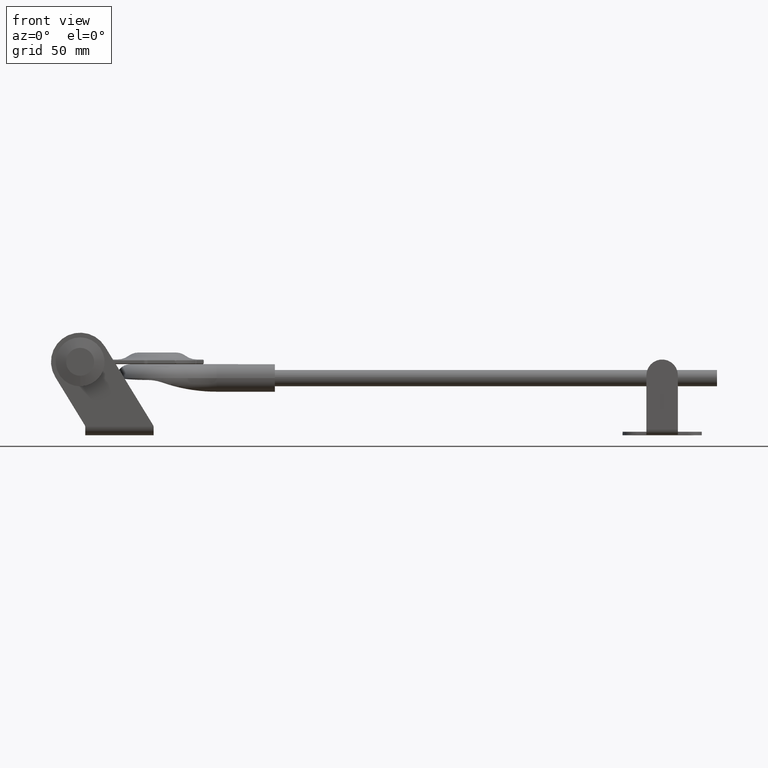
[diagram: clean part render]
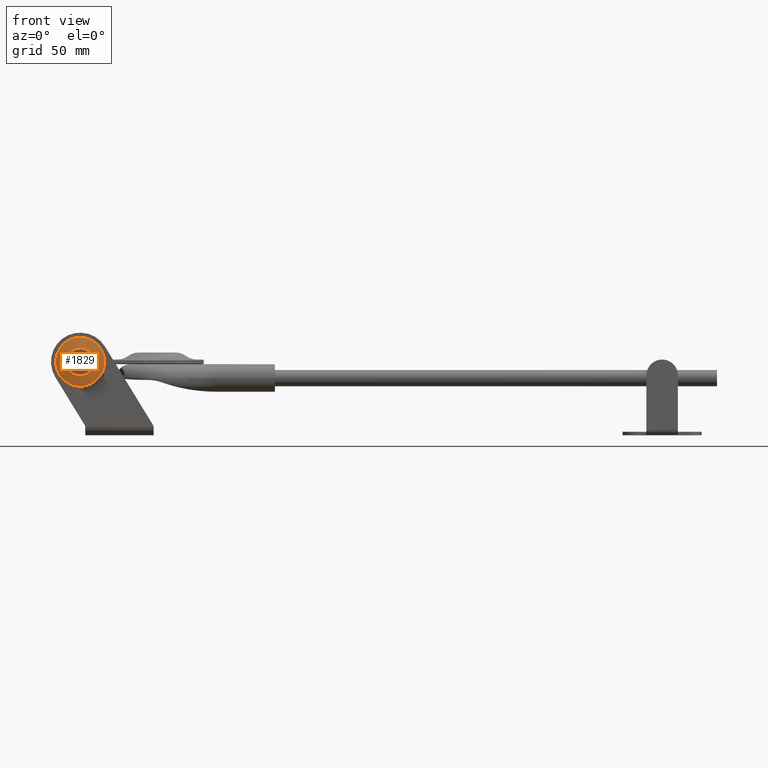
[diagram: same view with one face highlighted and labeled with its STEP entity id]
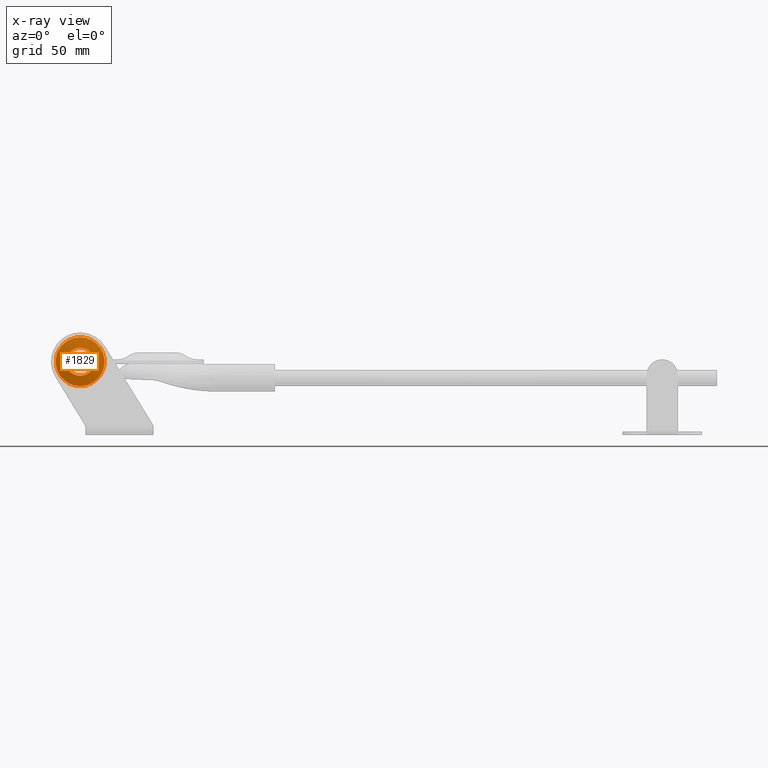
[diagram: x-ray of the same camera — body ghosted, the highlighted face saturated]
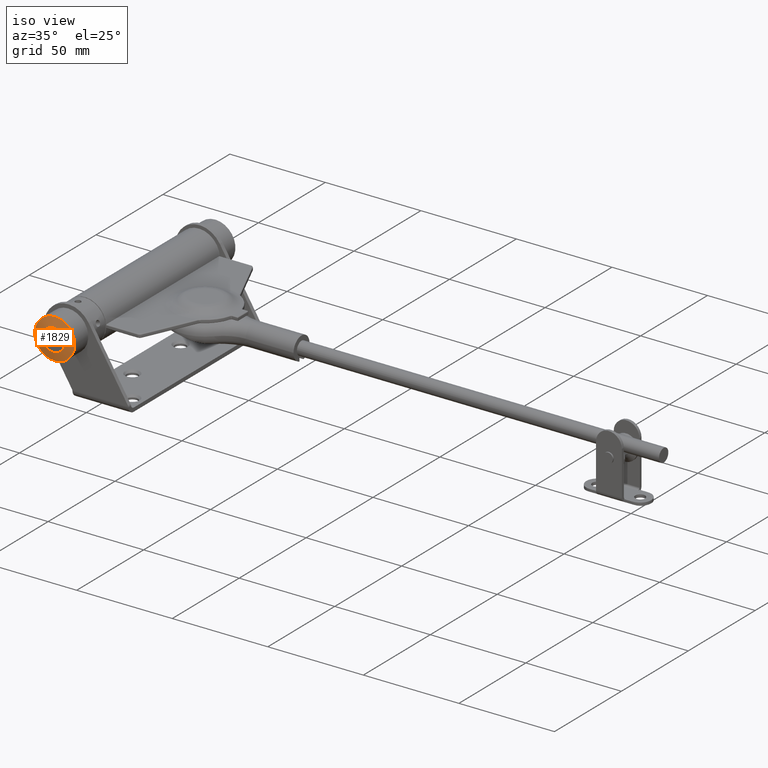
[diagram: same view with one face highlighted and labeled with its STEP entity id]
A machine part, front view. The second image highlights one B-rep face of the part: STEP entity #1829.
The next image is the same camera in x-ray: the body ghosted, the highlighted face saturated — about 0% of this face is hidden behind the body in this view.
A second angle (iso view) of the same face is appended — the face is thin or edge-on in the first view.
In plain terms, the highlighted conical surface has half-angle 77.471 deg.
Its self-contained STEP definition (entity closure, byte-faithful):
#1456 = CARTESIAN_POINT ( 'NONE',  ( 0.000000000000000000, 9.999999999999994671, 0.000000000000000000 ) ) ;
#1829 = ADVANCED_FACE ( 'NONE', ( #2088, #11211 ), #2151, .T. ) ;
#2088 = FACE_OUTER_BOUND ( 'NONE', #20911, .T. ) ;
#2151 = CONICAL_SURFACE ( 'NONE', #10405, 6.000000000000079936, 1.352127380920954858 ) ;
#2697 = DIRECTION ( 'NONE',  ( 0.000000000000000000, -1.000000000000000000, 2.052683297350817681E-47 ) ) ;
#2969 = VERTEX_POINT ( 'NONE', #14930 ) ;
#6168 = AXIS2_PLACEMENT_3D ( 'NONE', #10835, #16094, #23584 ) ;
#6764 = ORIENTED_EDGE ( 'NONE', *, *, #22731, .T. ) ;
#6938 = DIRECTION ( 'NONE',  ( 0.000000000000000000, 0.000000000000000000, -1.000000000000000000 ) ) ;
#7556 = VERTEX_POINT ( 'NONE', #22186 ) ;
#9335 = ORIENTED_EDGE ( 'NONE', *, *, #19044, .F. ) ;
#10405 = AXIS2_PLACEMENT_3D ( 'NONE', #15311, #2697, #11945 ) ;
#10835 = CARTESIAN_POINT ( 'NONE',  ( 0.000000000000000000, 10.99999999999999645, 0.000000000000000000 ) ) ;
#11211 = FACE_BOUND ( 'NONE', #16071, .T. ) ;
#11945 = DIRECTION ( 'NONE',  ( 0.000000000000000000, 0.000000000000000000, -1.000000000000000000 ) ) ;
#12853 = AXIS2_PLACEMENT_3D ( 'NONE', #1456, #14188, #6938 ) ;
#14188 = DIRECTION ( 'NONE',  ( 0.000000000000000000, -1.000000000000000000, 2.052683297350817681E-47 ) ) ;
#14930 = CARTESIAN_POINT ( 'NONE',  ( 0.000000000000000000, 9.999999999999994671, -10.50000000000013856 ) ) ;
#15311 = CARTESIAN_POINT ( 'NONE',  ( 0.000000000000000000, 10.99999999999999645, 0.000000000000000000 ) ) ;
#16071 = EDGE_LOOP ( 'NONE', ( #6764 ) ) ;
#16094 = DIRECTION ( 'NONE',  ( 0.000000000000000000, -1.000000000000000000, 2.052683297350817681E-47 ) ) ;
#17862 = CIRCLE ( 'NONE', #6168, 6.000000000000079936 ) ;
#19044 = EDGE_CURVE ( 'NONE', #2969, #2969, #19645, .T. ) ;
#19645 = CIRCLE ( 'NONE', #12853, 10.50000000000013856 ) ;
#20911 = EDGE_LOOP ( 'NONE', ( #9335 ) ) ;
#22186 = CARTESIAN_POINT ( 'NONE',  ( 0.000000000000000000, 10.99999999999999645, -6.000000000000079936 ) ) ;
#22731 = EDGE_CURVE ( 'NONE', #7556, #7556, #17862, .T. ) ;
#23584 = DIRECTION ( 'NONE',  ( 0.000000000000000000, 0.000000000000000000, -1.000000000000000000 ) ) ;